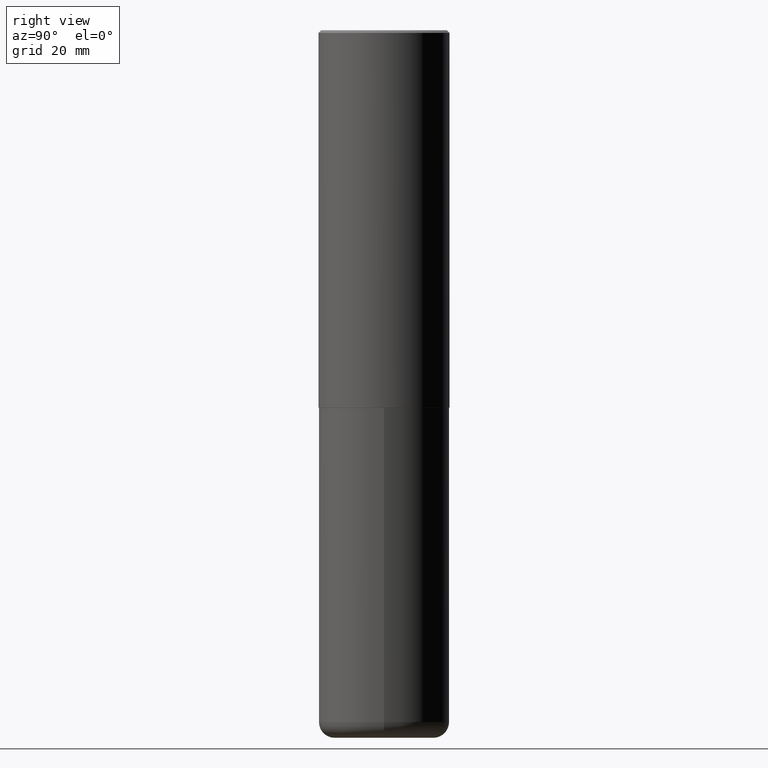
[diagram: clean part render]
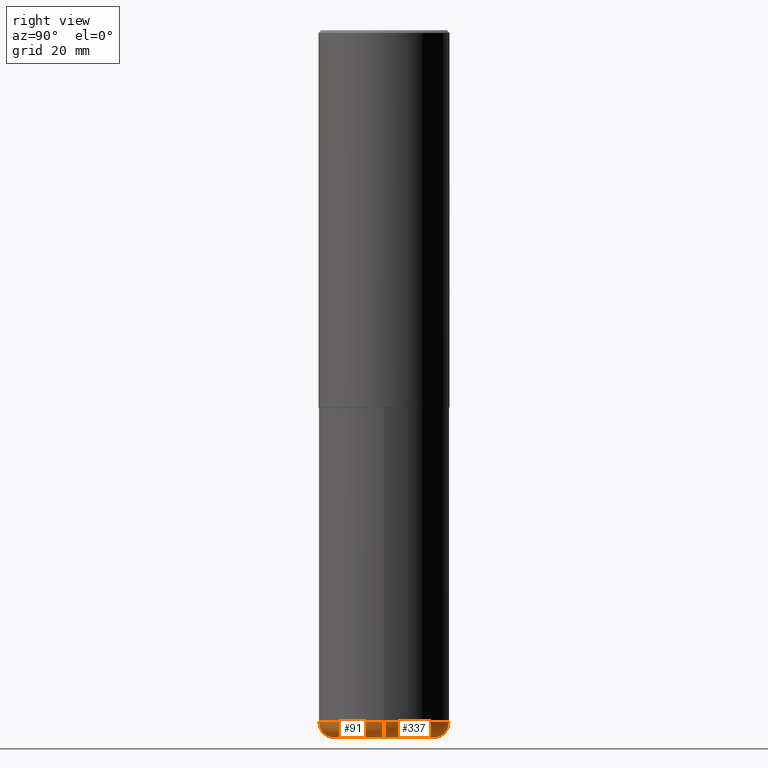
[diagram: same view with one multi-face feature highlighted, each face labeled with its STEP entity id]
A machine part, right view. The highlighted faces form ONE feature: a constant-radius fillet chain: 2 tangent blend faces with common blend radius 2.9997 mm. The faces share edges in the B-rep.
Their STEP definitions:
[1] entity #91 (Torus):
#11 = ORIENTED_EDGE ( 'NONE', *, *, #142, .T. ) ;
#22 = DIRECTION ( 'NONE',  ( -2.445468806185136597E-29, 3.491481338843145583E-15, 1.000000000000000000 ) ) ;
#23 = DIRECTION ( 'NONE',  ( 1.000000000000000000, -6.982962677686265133E-15, 0.000000000000000000 ) ) ;
#32 = ORIENTED_EDGE ( 'NONE', *, *, #329, .F. ) ;
#39 = TOROIDAL_SURFACE ( 'NONE', #345, 0.3740499999999999381, 0.1181000000000000383 ) ;
#49 = CARTESIAN_POINT ( 'NONE',  ( 0.3740499999999999381, -2.075685655942249311E-14, -5.196900000000000297 ) ) ;
#52 = CARTESIAN_POINT ( 'NONE',  ( -0.3740499999999999381, -1.527369075431564084E-14, -5.315000000000000391 ) ) ;
#69 = AXIS2_PLACEMENT_3D ( 'NONE', #81, #22, #23 ) ;
#78 = CARTESIAN_POINT ( 'NONE',  ( 0.4921499999999999764, -2.158154445165724138E-14, -5.196900000000000297 ) ) ;
#81 = CARTESIAN_POINT ( 'NONE',  ( 1.299766670487400218E-28, -1.855722331595131973E-14, -5.315000000000000391 ) ) ;
#91 = ADVANCED_FACE ( 'NONE', ( #249 ), #39, .T. ) ;
#94 = VERTEX_POINT ( 'NONE', #406 ) ;
#103 = EDGE_CURVE ( 'NONE', #292, #327, #174, .T. ) ;
#108 = DIRECTION ( 'NONE',  ( -6.982962677686266711E-15, -1.000000000000000000, 3.491481338843145583E-15 ) ) ;
#111 = CIRCLE ( 'NONE', #69, 0.3740499999999999381 ) ;
#118 = AXIS2_PLACEMENT_3D ( 'NONE', #243, #384, #381 ) ;
#120 = DIRECTION ( 'NONE',  ( -1.000000000000000000, 7.105427357601001859E-15, 0.000000000000000000 ) ) ;
#136 = CARTESIAN_POINT ( 'NONE',  ( -0.4921499999999999764, -1.464794329579061349E-14, -5.196900000000000297 ) ) ;
#137 = CARTESIAN_POINT ( 'NONE',  ( -0.3740499999999999381, -1.548709426672329248E-14, -5.196900000000000297 ) ) ;
#142 = EDGE_CURVE ( 'NONE', #94, #327, #355, .T. ) ;
#174 = CIRCLE ( 'NONE', #118, 0.4921499999999999764 ) ;
#216 = VERTEX_POINT ( 'NONE', #52 ) ;
#222 = EDGE_LOOP ( 'NONE', ( #32, #358, #11, #328 ) ) ;
#226 = DIRECTION ( 'NONE',  ( -2.445468806185136597E-29, 3.491481338843145583E-15, 1.000000000000000000 ) ) ;
#243 = CARTESIAN_POINT ( 'NONE',  ( 1.270885683886353718E-28, -1.814487936983394718E-14, -5.196900000000000297 ) ) ;
#249 = FACE_OUTER_BOUND ( 'NONE', #222, .T. ) ;
#277 = CIRCLE ( 'NONE', #351, 0.1181000000000000383 ) ;
#292 = VERTEX_POINT ( 'NONE', #136 ) ;
#312 = DIRECTION ( 'NONE',  ( 7.105427357601001859E-15, 1.000000000000000000, -3.491481338843145583E-15 ) ) ;
#324 = EDGE_CURVE ( 'NONE', #216, #94, #111, .T. ) ;
#327 = VERTEX_POINT ( 'NONE', #78 ) ;
#328 = ORIENTED_EDGE ( 'NONE', *, *, #103, .F. ) ;
#329 = EDGE_CURVE ( 'NONE', #216, #292, #277, .T. ) ;
#332 = CARTESIAN_POINT ( 'NONE',  ( 1.270885683886353718E-28, -1.814487936983394718E-14, -5.196900000000000297 ) ) ;
#345 = AXIS2_PLACEMENT_3D ( 'NONE', #332, #226, #359 ) ;
#351 = AXIS2_PLACEMENT_3D ( 'NONE', #137, #312, #120 ) ;
#355 = CIRCLE ( 'NONE', #386, 0.1181000000000000383 ) ;
#358 = ORIENTED_EDGE ( 'NONE', *, *, #324, .T. ) ;
#359 = DIRECTION ( 'NONE',  ( 1.000000000000000000, -6.982962677686266711E-15, 4.883557194083112340E-29 ) ) ;
#370 = DIRECTION ( 'NONE',  ( 1.000000000000000000, -6.982962677686270655E-15, 0.000000000000000000 ) ) ;
#381 = DIRECTION ( 'NONE',  ( 1.000000000000000000, -6.982962677686265922E-15, 0.000000000000000000 ) ) ;
#384 = DIRECTION ( 'NONE',  ( -2.445468806185136597E-29, 3.491481338843145583E-15, 1.000000000000000000 ) ) ;
#386 = AXIS2_PLACEMENT_3D ( 'NONE', #49, #108, #370 ) ;
#406 = CARTESIAN_POINT ( 'NONE',  ( 0.3740499999999999381, -2.116920050553986882E-14, -5.315000000000000391 ) ) ;
[2] entity #337 (Torus):
#4 = CARTESIAN_POINT ( 'NONE',  ( 1.299766670487400218E-28, -1.855722331595131973E-14, -5.315000000000000391 ) ) ;
#36 = DIRECTION ( 'NONE',  ( -2.445468806185136597E-29, 3.491481338843145583E-15, 1.000000000000000000 ) ) ;
#49 = CARTESIAN_POINT ( 'NONE',  ( 0.3740499999999999381, -2.075685655942249311E-14, -5.196900000000000297 ) ) ;
#52 = CARTESIAN_POINT ( 'NONE',  ( -0.3740499999999999381, -1.527369075431564084E-14, -5.315000000000000391 ) ) ;
#63 = DIRECTION ( 'NONE',  ( -2.445468806185136597E-29, 3.491481338843145583E-15, 1.000000000000000000 ) ) ;
#78 = CARTESIAN_POINT ( 'NONE',  ( 0.4921499999999999764, -2.158154445165724138E-14, -5.196900000000000297 ) ) ;
#93 = EDGE_CURVE ( 'NONE', #94, #216, #276, .T. ) ;
#94 = VERTEX_POINT ( 'NONE', #406 ) ;
#108 = DIRECTION ( 'NONE',  ( -6.982962677686266711E-15, -1.000000000000000000, 3.491481338843145583E-15 ) ) ;
#110 = AXIS2_PLACEMENT_3D ( 'NONE', #4, #63, #192 ) ;
#116 = AXIS2_PLACEMENT_3D ( 'NONE', #149, #169, #339 ) ;
#120 = DIRECTION ( 'NONE',  ( -1.000000000000000000, 7.105427357601001859E-15, 0.000000000000000000 ) ) ;
#130 = DIRECTION ( 'NONE',  ( 1.000000000000000000, -6.982962677686265922E-15, 0.000000000000000000 ) ) ;
#136 = CARTESIAN_POINT ( 'NONE',  ( -0.4921499999999999764, -1.464794329579061349E-14, -5.196900000000000297 ) ) ;
#137 = CARTESIAN_POINT ( 'NONE',  ( -0.3740499999999999381, -1.548709426672329248E-14, -5.196900000000000297 ) ) ;
#142 = EDGE_CURVE ( 'NONE', #94, #327, #355, .T. ) ;
#149 = CARTESIAN_POINT ( 'NONE',  ( 1.270885683886353718E-28, -1.814487936983394718E-14, -5.196900000000000297 ) ) ;
#169 = DIRECTION ( 'NONE',  ( -2.445468806185136597E-29, 3.491481338843145583E-15, 1.000000000000000000 ) ) ;
#191 = CARTESIAN_POINT ( 'NONE',  ( 1.270885683886353718E-28, -1.814487936983394718E-14, -5.196900000000000297 ) ) ;
#192 = DIRECTION ( 'NONE',  ( 1.000000000000000000, -6.982962677686265133E-15, 0.000000000000000000 ) ) ;
#201 = FACE_OUTER_BOUND ( 'NONE', #262, .T. ) ;
#216 = VERTEX_POINT ( 'NONE', #52 ) ;
#260 = AXIS2_PLACEMENT_3D ( 'NONE', #191, #36, #130 ) ;
#262 = EDGE_LOOP ( 'NONE', ( #396, #366, #399, #349 ) ) ;
#276 = CIRCLE ( 'NONE', #110, 0.3740499999999999381 ) ;
#277 = CIRCLE ( 'NONE', #351, 0.1181000000000000383 ) ;
#292 = VERTEX_POINT ( 'NONE', #136 ) ;
#296 = TOROIDAL_SURFACE ( 'NONE', #116, 0.3740499999999999381, 0.1181000000000000383 ) ;
#312 = DIRECTION ( 'NONE',  ( 7.105427357601001859E-15, 1.000000000000000000, -3.491481338843145583E-15 ) ) ;
#327 = VERTEX_POINT ( 'NONE', #78 ) ;
#329 = EDGE_CURVE ( 'NONE', #216, #292, #277, .T. ) ;
#337 = ADVANCED_FACE ( 'NONE', ( #201 ), #296, .T. ) ;
#339 = DIRECTION ( 'NONE',  ( 1.000000000000000000, -6.982962677686266711E-15, 4.883557194083112340E-29 ) ) ;
#349 = ORIENTED_EDGE ( 'NONE', *, *, #142, .F. ) ;
#351 = AXIS2_PLACEMENT_3D ( 'NONE', #137, #312, #120 ) ;
#355 = CIRCLE ( 'NONE', #386, 0.1181000000000000383 ) ;
#366 = ORIENTED_EDGE ( 'NONE', *, *, #329, .T. ) ;
#370 = DIRECTION ( 'NONE',  ( 1.000000000000000000, -6.982962677686270655E-15, 0.000000000000000000 ) ) ;
#386 = AXIS2_PLACEMENT_3D ( 'NONE', #49, #108, #370 ) ;
#396 = ORIENTED_EDGE ( 'NONE', *, *, #93, .T. ) ;
#399 = ORIENTED_EDGE ( 'NONE', *, *, #408, .F. ) ;
#406 = CARTESIAN_POINT ( 'NONE',  ( 0.3740499999999999381, -2.116920050553986882E-14, -5.315000000000000391 ) ) ;
#408 = EDGE_CURVE ( 'NONE', #327, #292, #410, .T. ) ;
#410 = CIRCLE ( 'NONE', #260, 0.4921499999999999764 ) ;